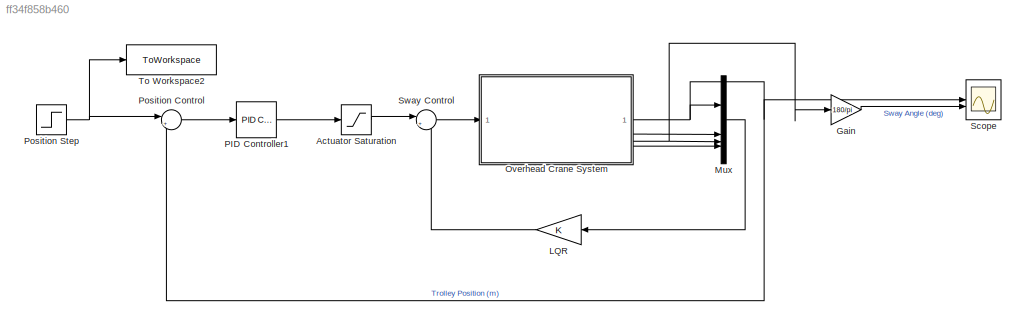
MODEL slx_ff34f858b460
KIND model
CONFIG AbsTol = auto
CONFIG EnableMultiTasking = off
CONFIG FixedStep = 1/1000
CONFIG MaxStep = auto
CONFIG MinStep = auto
CONFIG RelTol = 1e-3
CONFIG SampleTimeConstraint = Unconstrained
CONFIG SolverName = FixedStepAuto
CONFIG StartTime = 0.0
CONFIG StopTime = stop_time
BLOCK [Saturate] Actuator Saturation
  LowerLimit = -F_max
  UpperLimit = F_max
BLOCK [Gain] Gain
  Gain = 180/pi
BLOCK [Gain] LQR
  Gain = K
  Multiplication = Matrix(K*u)
BLOCK [Mux] Mux
  DisplayOption = bar
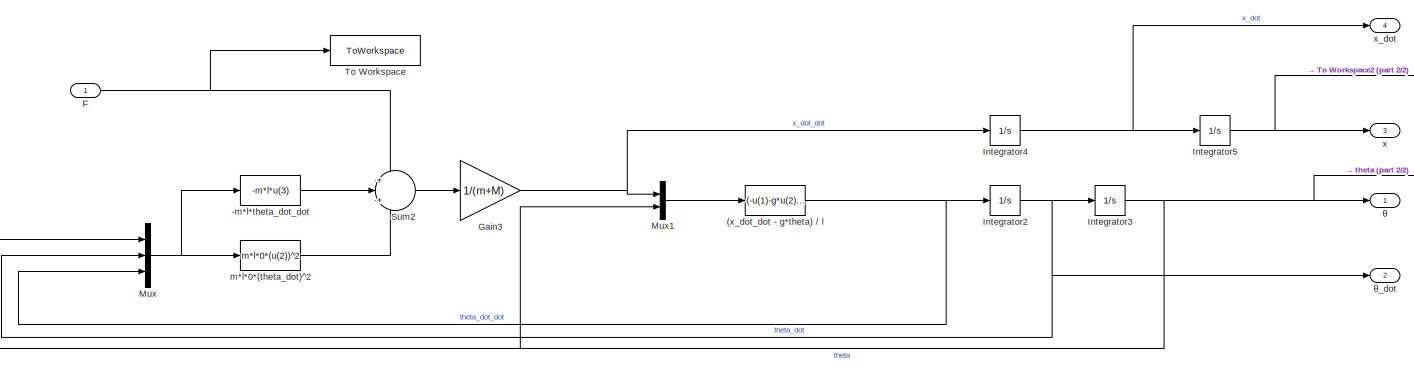
[diagram: Overhead Crane System - part 1/2, most of the canvas]
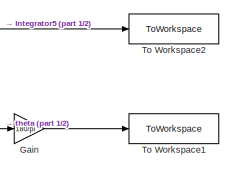
[diagram: Overhead Crane System - part 2/2, middle right region]
BLOCK [SubSystem] Overhead Crane System
BLOCK [Fcn] Overhead Crane System/(x_dot_dot - g*theta) // l
  Expr = (-u(1)-g*u(2))/l
BLOCK [Fcn] Overhead Crane System/-m*l*theta_dot_dot
  Expr = -m*l*u(3)
BLOCK [Inport] Overhead Crane System/F
BLOCK [Gain] Overhead Crane System/Gain
  Gain = 180/pi
BLOCK [Gain] Overhead Crane System/Gain3
  Gain = 1/(m+M)
BLOCK [Integrator] Overhead Crane System/Integrator2
BLOCK [Integrator] Overhead Crane System/Integrator3
BLOCK [Integrator] Overhead Crane System/Integrator4
BLOCK [Integrator] Overhead Crane System/Integrator5
BLOCK [Mux] Overhead Crane System/Mux
  DisplayOption = bar
  Inputs = 3
BLOCK [Mux] Overhead Crane System/Mux1
  DisplayOption = bar
  Inputs = 2
BLOCK [Sum] Overhead Crane System/Sum2
  Inputs = +|+|+
BLOCK [ToWorkspace] Overhead Crane System/To Workspace
  FixptAsFi = on
  MaxDataPoints = inf
  SampleTime = -1
  SaveFormat = Timeseries
  VariableName = trolley_Force
BLOCK [ToWorkspace] Overhead Crane System/To Workspace1
  FixptAsFi = on
  MaxDataPoints = inf
  SampleTime = -1
  SaveFormat = Timeseries
  VariableName = rope_Angle
BLOCK [ToWorkspace] Overhead Crane System/To Workspace2
  FixptAsFi = on
  MaxDataPoints = inf
  SampleTime = -1
  SaveFormat = Timeseries
  VariableName = trolley_Pos
BLOCK [Fcn] Overhead Crane System/m*l*0*(theta_dot)^2
  Expr = m*l*0*(u(2))^2
BLOCK [Outport] Overhead Crane System/x
  Port = 3
BLOCK [Outport] Overhead Crane System/x_dot
  Port = 4
BLOCK [Outport] Overhead Crane System/θ
BLOCK [Outport] Overhead Crane System/θ_dot
  Port = 2
BLOCK [Reference] PID Controller1  REF=slpidlib/PID Controller
  LibrarySourceBlock = simulink/Continuous/PID Controller
  SourceBlock = slpidlib/PID Controller
  SourceType = PID 1dof
BLOCK [Sum] Position Control
  Inputs = |+-
  NameLocation = top
BLOCK [Step] Position Step
  After = 4
  SampleTime = 0
  Time = 0
BLOCK [Scope] Scope
  Floating = off
  NumInputPorts = 2
  ScopeSpecificationString = Simulink.scopes.TimeScopeBlockCfg('CurrentConfiguration', extmgr.ConfigurationSet(extmgr.Configuration('Core','General UI',true),extmgr.Configuration('Core','Source UI',true),extmgr.Configuration('Sources','WiredSimulink',true),extmgr.Configuration('Visuals','Time Domain',true,'SerializedDisplays',{struct('MinYLimReal','-0.497','MaxYLimReal','4.47304','YLabelReal','','MinYLimMag','0.00000','MaxYLi...<+2067ch>
BLOCK [Sum] Sway Control
  Inputs = |+-
  NameLocation = top
BLOCK [ToWorkspace] To Workspace2
  FixptAsFi = on
  MaxDataPoints = inf
  NameLocation = top
  SampleTime = -1
  SaveFormat = Timeseries
  VariableName = trolley_ref_Pos
LINE Actuator Saturation:1 -> Sway Control:1
LINE Gain:1 -> Scope:2
LINE LQR:1 -> Sway Control:2
LINE Mux:1 -> LQR:1
NET Overhead Crane System/(x_dot_dot - g*theta) // l:1 -> Overhead Crane System/Integrator2:1, Overhead Crane System/Mux:3
LINE Overhead Crane System/-m*l*theta_dot_dot:1 -> Overhead Crane System/Sum2:2
NET Overhead Crane System/F:1 -> Overhead Crane System/Sum2:1, Overhead Crane System/To Workspace:1
NET Overhead Crane System/Gain3:1 -> Overhead Crane System/Integrator4:1, Overhead Crane System/Mux1:1
LINE Overhead Crane System/Gain:1 -> Overhead Crane System/To Workspace1:1
NET Overhead Crane System/Integrator2:1 -> Overhead Crane System/Integrator3:1, Overhead Crane System/Mux:2, Overhead Crane System/θ_dot:1
NET Overhead Crane System/Integrator3:1 -> Overhead Crane System/Gain:1, Overhead Crane System/Mux1:2, Overhead Crane System/Mux:1, Overhead Crane System/θ:1
NET Overhead Crane System/Integrator4:1 -> Overhead Crane System/Integrator5:1, Overhead Crane System/x_dot:1
NET Overhead Crane System/Integrator5:1 -> Overhead Crane System/To Workspace2:1, Overhead Crane System/x:1
LINE Overhead Crane System/Mux1:1 -> Overhead Crane System/(x_dot_dot - g*theta) // l:1
NET Overhead Crane System/Mux:1 -> Overhead Crane System/-m*l*theta_dot_dot:1, Overhead Crane System/m*l*0*(theta_dot)^2:1
LINE Overhead Crane System/Sum2:1 -> Overhead Crane System/Gain3:1
LINE Overhead Crane System/m*l*0*(theta_dot)^2:1 -> Overhead Crane System/Sum2:3
NET Overhead Crane System:1 -> Mux:1, Position Control:2, Scope:1
LINE Overhead Crane System:2 -> Mux:2
NET Overhead Crane System:3 -> Gain:1, Mux:3
LINE Overhead Crane System:4 -> Mux:4
LINE PID Controller1:1 -> Actuator Saturation:1
LINE Position Control:1 -> PID Controller1:1
NET Position Step:1 -> Position Control:1, To Workspace2:1
LINE Sway Control:1 -> Overhead Crane System:1
note: NET lines group one-source signal fan-out (src -> all destinations, sorted); 1:1 wires keep LINE
